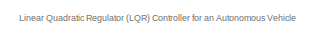
[diagram: root canvas - part 1/5, top left region]
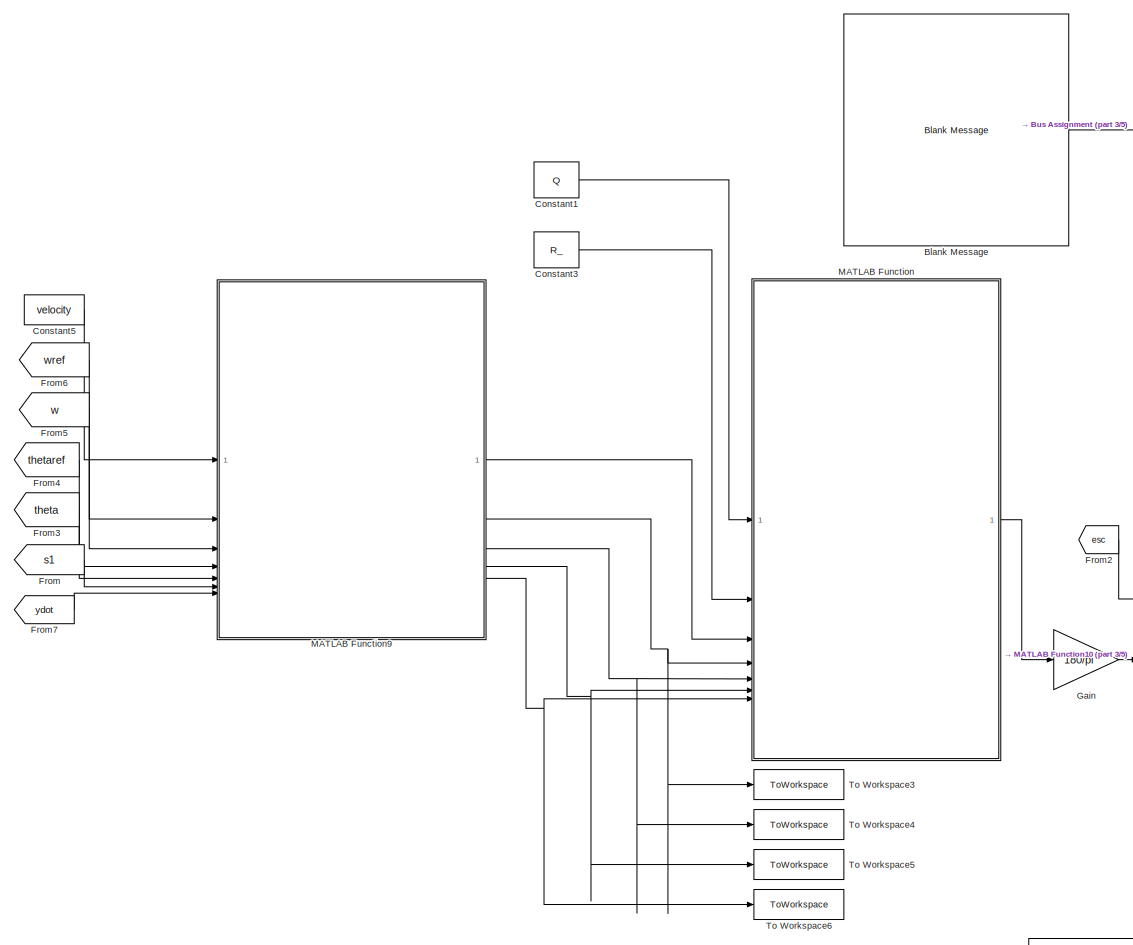
[diagram: root canvas - part 2/5, middle left region]
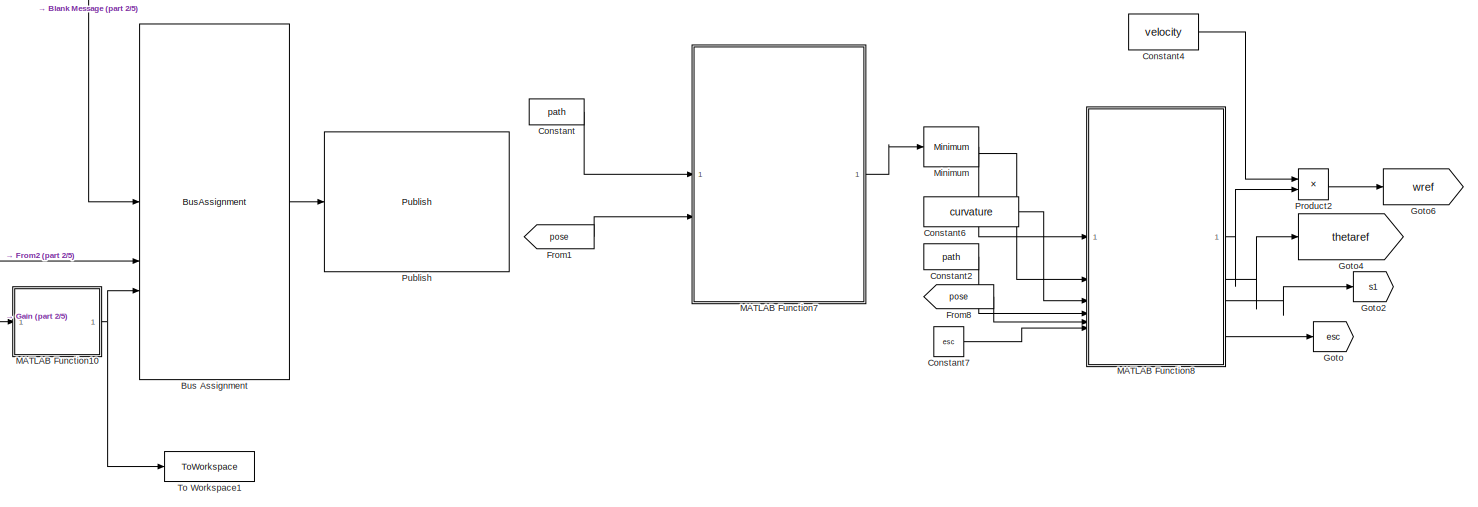
[diagram: root canvas - part 3/5, middle right region]
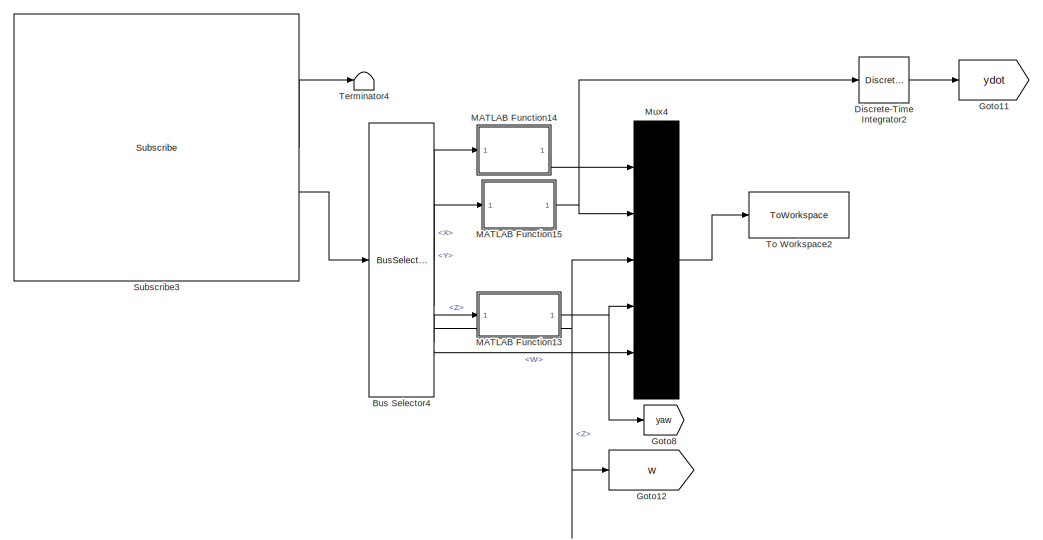
[diagram: root canvas - part 4/5, bottom center region]
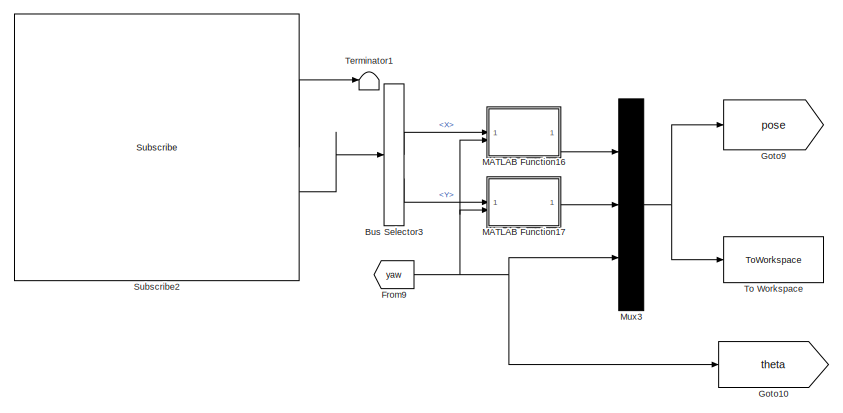
[diagram: root canvas - part 5/5, bottom left region]
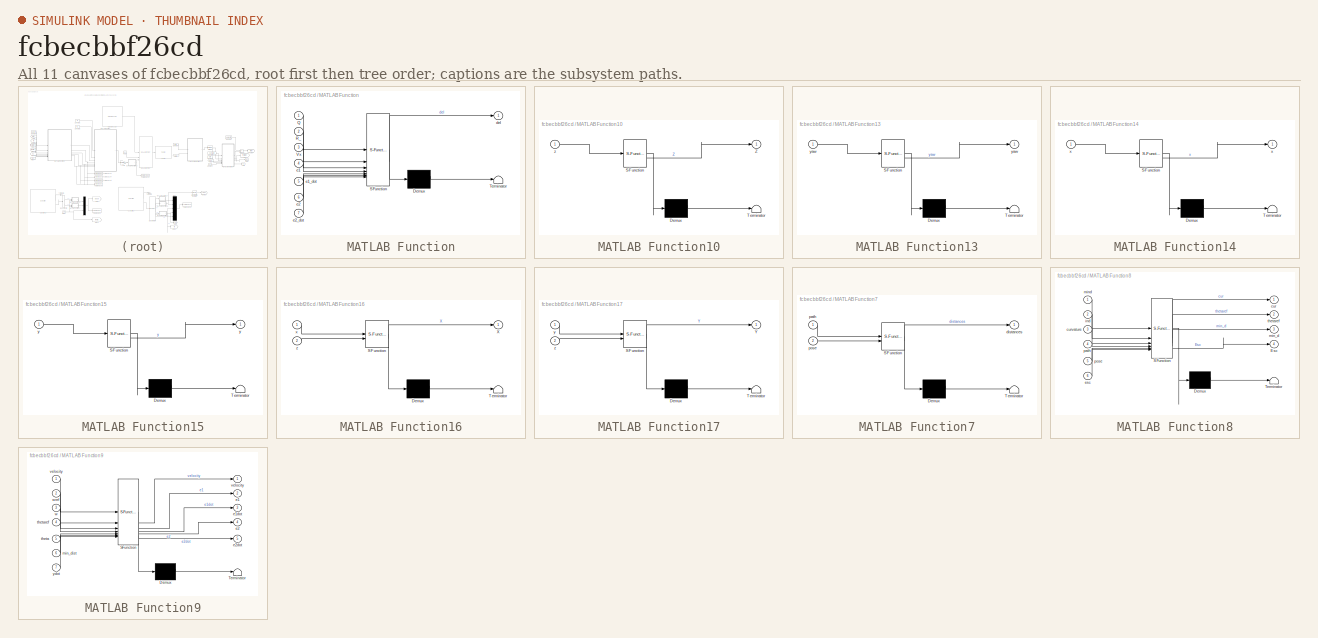
[diagram: thumbnail index - all 11 canvases of the model, root first then tree order]
MODEL slx_fcbecbbf26cd
KIND model
CONFIG AbsTol = auto
CONFIG EnableMultiTasking = off
CONFIG FixedStep = auto
CONFIG MaxStep = auto
CONFIG MinStep = auto
CONFIG RelTol = 1e-3
CONFIG SampleTimeConstraint = Unconstrained
CONFIG SolverName = ode45
CONFIG StartTime = 0.0
CONFIG StopTime = inf
BLOCK [Reference] Blank Message  REF=robotlib/Blank Message
  LibrarySourceBlock = roslib/ROS/Blank Message
  SourceBlock = robotlib/Blank Message
  SourceType = ROS Blank Message
BLOCK [BusAssignment] Bus Assignment
  AssignedSignals = Linear.X,Angular.Z
BLOCK [BusSelector] Bus Selector3
  OutputSignals = Pose.Position.X,Pose.Position.Y
BLOCK [BusSelector] Bus Selector4
  OutputSignals = LinearAcceleration.X,LinearAcceleration.Y,AngularVelocity.Z,Orientation.Z,Orientation.W
BLOCK [Constant] Constant
  SampleTime = 1/hz
  Value = path
BLOCK [Constant] Constant1
  SampleTime = 1/hz
  Value = Q
BLOCK [Constant] Constant2
  SampleTime = 1/hz
  Value = path
BLOCK [Constant] Constant3
  SampleTime = 1/hz
  Value = R_
BLOCK [Constant] Constant4
  SampleTime = 1/hz
  Value = velocity
BLOCK [Constant] Constant5
  SampleTime = 1/hz
  Value = velocity
BLOCK [Constant] Constant6
  SampleTime = 1/hz
  Value = curvature
BLOCK [Constant] Constant7
  SampleTime = 1/hz
  Value = esc
BLOCK [DiscreteIntegrator] Discrete-Time Integrator2
  ICPrevOutput = DiscIntNeverNeededParam
  ICPrevScaledInput = DiscIntNeverNeededParam
  InitialConditionSetting = Auto
  SampleTime = 1/hz
BLOCK [From] From
  GotoTag = s1
BLOCK [From] From1
  GotoTag = pose
BLOCK [From] From2
  GotoTag = esc
BLOCK [From] From3
  GotoTag = theta
BLOCK [From] From4
  GotoTag = thetaref
BLOCK [From] From5
  GotoTag = w
BLOCK [From] From6
  GotoTag = wref
BLOCK [From] From7
  GotoTag = ydot
BLOCK [From] From8
  GotoTag = pose
BLOCK [From] From9
  GotoTag = yaw
BLOCK [Gain] Gain
  Gain = 180/pi
BLOCK [Goto] Goto
  GotoTag = esc
BLOCK [Goto] Goto10
  GotoTag = theta
BLOCK [Goto] Goto11
  GotoTag = ydot
BLOCK [Goto] Goto12
  GotoTag = w
BLOCK [Goto] Goto2
  GotoTag = s1
BLOCK [Goto] Goto4
  GotoTag = thetaref
BLOCK [Goto] Goto6
  GotoTag = wref
BLOCK [Goto] Goto8
  GotoTag = yaw
BLOCK [Goto] Goto9
  GotoTag = pose
BLOCK [SubSystem] MATLAB Function
  ErrorFcn = Stateflow.Translate.translate
  NameLocation = top
  PermitHierarchicalResolution = ExplicitOnly
  SFBlockType = MATLAB Function
  TreatAsAtomicUnit = on
BLOCK [Demux] MATLAB Function/ Demux 
  Outputs = 1
BLOCK [S-Function] MATLAB Function/ SFunction 
  EnableBusSupport = on
  FunctionName = sf_sfun
  PortCounts = [7 2]
  SFcnIsStateOwnerBlock = off
  SFunctionDeploymentMode = off
  Tag = Stateflow S-Function 2
BLOCK [Terminator] MATLAB Function/ Terminator 
BLOCK [Inport] MATLAB Function/Q
BLOCK [Inport] MATLAB Function/R_
  Port = 2
BLOCK [Inport] MATLAB Function/Vx
  Port = 3
BLOCK [Outport] MATLAB Function/del
BLOCK [Inport] MATLAB Function/e1
  Port = 4
BLOCK [Inport] MATLAB Function/e1_dot
  Port = 5
BLOCK [Inport] MATLAB Function/e2
  Port = 6
BLOCK [Inport] MATLAB Function/e2_dot
  Port = 7
BLOCK [SubSystem] MATLAB Function10
  ErrorFcn = Stateflow.Translate.translate
  LibrarySourceBlock = simulink/User-Defined\nFunctions/MATLAB Function
  PermitHierarchicalResolution = ExplicitOnly
  SFBlockType = MATLAB Function
  TreatAsAtomicUnit = on
BLOCK [Demux] MATLAB Function10/ Demux 
  Outputs = 1
BLOCK [S-Function] MATLAB Function10/ SFunction 
  EnableBusSupport = on
  FunctionName = sf_sfun
  PortCounts = [1 2]
  SFcnIsStateOwnerBlock = off
  SFunctionDeploymentMode = off
  Tag = Stateflow S-Function 11
BLOCK [Terminator] MATLAB Function10/ Terminator 
BLOCK [Outport] MATLAB Function10/Z
BLOCK [Inport] MATLAB Function10/z
BLOCK [SubSystem] MATLAB Function13
  ErrorFcn = Stateflow.Translate.translate
  LibrarySourceBlock = simulink/User-Defined\nFunctions/MATLAB Function
  PermitHierarchicalResolution = ExplicitOnly
  SFBlockType = MATLAB Function
  TreatAsAtomicUnit = on
BLOCK [Demux] MATLAB Function13/ Demux 
  Outputs = 1
BLOCK [S-Function] MATLAB Function13/ SFunction 
  EnableBusSupport = on
  FunctionName = sf_sfun
  PortCounts = [1 2]
  SFcnIsStateOwnerBlock = off
  SFunctionDeploymentMode = off
  Tag = Stateflow S-Function 14
BLOCK [Terminator] MATLAB Function13/ Terminator 
BLOCK [Outport] MATLAB Function13/yaw
BLOCK [Inport] MATLAB Function13/yaw 
BLOCK [SubSystem] MATLAB Function14
  ErrorFcn = Stateflow.Translate.translate
  LibrarySourceBlock = simulink/User-Defined\nFunctions/MATLAB Function
  PermitHierarchicalResolution = ExplicitOnly
  SFBlockType = MATLAB Function
  TreatAsAtomicUnit = on
BLOCK [Demux] MATLAB Function14/ Demux 
  Outputs = 1
BLOCK [S-Function] MATLAB Function14/ SFunction 
  EnableBusSupport = on
  FunctionName = sf_sfun
  PortCounts = [1 2]
  SFcnIsStateOwnerBlock = off
  SFunctionDeploymentMode = off
  Tag = Stateflow S-Function 15
BLOCK [Terminator] MATLAB Function14/ Terminator 
BLOCK [Outport] MATLAB Function14/x
BLOCK [Inport] MATLAB Function14/x 
BLOCK [SubSystem] MATLAB Function15
  ErrorFcn = Stateflow.Translate.translate
  LibrarySourceBlock = simulink/User-Defined\nFunctions/MATLAB Function
  PermitHierarchicalResolution = ExplicitOnly
  SFBlockType = MATLAB Function
  TreatAsAtomicUnit = on
BLOCK [Demux] MATLAB Function15/ Demux 
  Outputs = 1
BLOCK [S-Function] MATLAB Function15/ SFunction 
  EnableBusSupport = on
  FunctionName = sf_sfun
  PortCounts = [1 2]
  SFcnIsStateOwnerBlock = off
  SFunctionDeploymentMode = off
  Tag = Stateflow S-Function 16
BLOCK [Terminator] MATLAB Function15/ Terminator 
BLOCK [Outport] MATLAB Function15/y
BLOCK [Inport] MATLAB Function15/y 
BLOCK [SubSystem] MATLAB Function16
  ErrorFcn = Stateflow.Translate.translate
  LibrarySourceBlock = simulink/User-Defined\nFunctions/MATLAB Function
  PermitHierarchicalResolution = ExplicitOnly
  SFBlockType = MATLAB Function
  TreatAsAtomicUnit = on
BLOCK [Demux] MATLAB Function16/ Demux 
  Outputs = 1
BLOCK [S-Function] MATLAB Function16/ SFunction 
  EnableBusSupport = on
  FunctionName = sf_sfun
  PortCounts = [2 2]
  SFcnIsStateOwnerBlock = off
  SFunctionDeploymentMode = off
  Tag = Stateflow S-Function 17
BLOCK [Terminator] MATLAB Function16/ Terminator 
BLOCK [Outport] MATLAB Function16/X
BLOCK [Inport] MATLAB Function16/x
BLOCK [Inport] MATLAB Function16/z
  Port = 2
BLOCK [SubSystem] MATLAB Function17
  ErrorFcn = Stateflow.Translate.translate
  LibrarySourceBlock = simulink/User-Defined\nFunctions/MATLAB Function
  PermitHierarchicalResolution = ExplicitOnly
  SFBlockType = MATLAB Function
  TreatAsAtomicUnit = on
BLOCK [Demux] MATLAB Function17/ Demux 
  Outputs = 1
BLOCK [S-Function] MATLAB Function17/ SFunction 
  EnableBusSupport = on
  FunctionName = sf_sfun
  PortCounts = [2 2]
  SFcnIsStateOwnerBlock = off
  SFunctionDeploymentMode = off
  Tag = Stateflow S-Function 18
BLOCK [Terminator] MATLAB Function17/ Terminator 
BLOCK [Outport] MATLAB Function17/Y
BLOCK [Inport] MATLAB Function17/y
BLOCK [Inport] MATLAB Function17/z
  Port = 2
BLOCK [SubSystem] MATLAB Function7
  ErrorFcn = Stateflow.Translate.translate
  LibrarySourceBlock = simulink/User-Defined\nFunctions/MATLAB Function
  PermitHierarchicalResolution = ExplicitOnly
  SFBlockType = MATLAB Function
  TreatAsAtomicUnit = on
BLOCK [Demux] MATLAB Function7/ Demux 
  Outputs = 1
BLOCK [S-Function] MATLAB Function7/ SFunction 
  EnableBusSupport = on
  FunctionName = sf_sfun
  PortCounts = [2 2]
  SFcnIsStateOwnerBlock = off
  SFunctionDeploymentMode = off
  Tag = Stateflow S-Function 8
BLOCK [Terminator] MATLAB Function7/ Terminator 
BLOCK [Outport] MATLAB Function7/distances
BLOCK [Inport] MATLAB Function7/path
BLOCK [Inport] MATLAB Function7/pose
  Port = 2
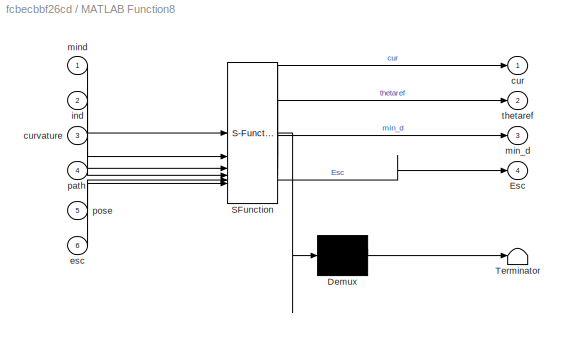
BLOCK [SubSystem] MATLAB Function8
  ErrorFcn = Stateflow.Translate.translate
  LibrarySourceBlock = simulink/User-Defined\nFunctions/MATLAB Function
  PermitHierarchicalResolution = ExplicitOnly
  SFBlockType = MATLAB Function
  TreatAsAtomicUnit = on
BLOCK [Demux] MATLAB Function8/ Demux 
  Outputs = 1
BLOCK [S-Function] MATLAB Function8/ SFunction 
  EnableBusSupport = on
  FunctionName = sf_sfun
  PortCounts = [6 5]
  SFcnIsStateOwnerBlock = off
  SFunctionDeploymentMode = off
  Tag = Stateflow S-Function 9
BLOCK [Terminator] MATLAB Function8/ Terminator 
BLOCK [Outport] MATLAB Function8/Esc
  Port = 4
BLOCK [Outport] MATLAB Function8/cur
BLOCK [Inport] MATLAB Function8/curvature
  Port = 3
BLOCK [Inport] MATLAB Function8/esc
  Port = 6
BLOCK [Inport] MATLAB Function8/ind
  Port = 2
BLOCK [Outport] MATLAB Function8/min_d
  Port = 3
BLOCK [Inport] MATLAB Function8/mind
BLOCK [Inport] MATLAB Function8/path
  Port = 4
BLOCK [Inport] MATLAB Function8/pose
  Port = 5
BLOCK [Outport] MATLAB Function8/thetaref
  Port = 2
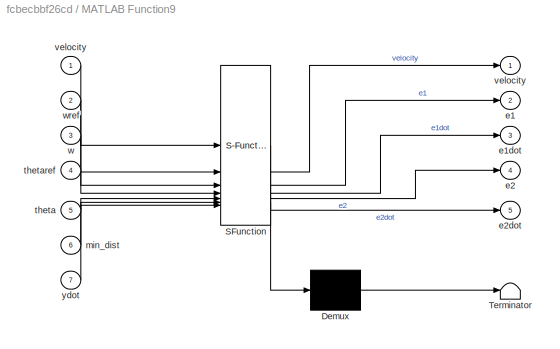
BLOCK [SubSystem] MATLAB Function9
  ErrorFcn = Stateflow.Translate.translate
  LibrarySourceBlock = simulink/User-Defined\nFunctions/MATLAB Function
  PermitHierarchicalResolution = ExplicitOnly
  SFBlockType = MATLAB Function
  TreatAsAtomicUnit = on
BLOCK [Demux] MATLAB Function9/ Demux 
  Outputs = 1
BLOCK [S-Function] MATLAB Function9/ SFunction 
  EnableBusSupport = on
  FunctionName = sf_sfun
  PortCounts = [7 6]
  SFcnIsStateOwnerBlock = off
  SFunctionDeploymentMode = off
  Tag = Stateflow S-Function 10
BLOCK [Terminator] MATLAB Function9/ Terminator 
BLOCK [Outport] MATLAB Function9/e1
  Port = 2
BLOCK [Outport] MATLAB Function9/e1dot
  Port = 3
BLOCK [Outport] MATLAB Function9/e2
  Port = 4
BLOCK [Outport] MATLAB Function9/e2dot
  Port = 5
BLOCK [Inport] MATLAB Function9/min_dist
  Port = 6
BLOCK [Inport] MATLAB Function9/theta
  Port = 5
BLOCK [Inport] MATLAB Function9/thetaref
  Port = 4
BLOCK [Outport] MATLAB Function9/velocity
BLOCK [Inport] MATLAB Function9/velocity 
BLOCK [Inport] MATLAB Function9/w
  Port = 3
BLOCK [Inport] MATLAB Function9/wref
  Port = 2
BLOCK [Inport] MATLAB Function9/ydot
  Port = 7
BLOCK [Reference] Minimum  REF=dspstat3/Minimum
  SourceBlock = dspstat3/Minimum
  SourceType = Minimum
  UserDataPersistent = on
BLOCK [Mux] Mux3
  DisplayOption = bar
  Inputs = 3
BLOCK [Mux] Mux4
  DisplayOption = bar
  Inputs = 5
BLOCK [Product] Product2
BLOCK [Reference] Publish  REF=robotlib/Publish
  LibrarySourceBlock = roslib/ROS/Publish
  SourceBlock = robotlib/Publish
  SourceType = ROS Publish
BLOCK [Reference] Subscribe2  REF=robotlib/Subscribe
  LibrarySourceBlock = roslib/ROS/Subscribe
  SourceBlock = robotlib/Subscribe
  SourceType = ROS Subscribe
BLOCK [Reference] Subscribe3  REF=robotlib/Subscribe
  LibrarySourceBlock = roslib/ROS/Subscribe
  SourceBlock = robotlib/Subscribe
  SourceType = ROS Subscribe
BLOCK [Terminator] Terminator1
BLOCK [Terminator] Terminator4
BLOCK [ToWorkspace] To Workspace
  FixptAsFi = on
  MaxDataPoints = inf
  SampleTime = -1
  SaveFormat = Structure With Time
  VariableName = pose
BLOCK [ToWorkspace] To Workspace1
  FixptAsFi = on
  MaxDataPoints = inf
  SampleTime = -1
  SaveFormat = Structure With Time
  VariableName = steering
BLOCK [ToWorkspace] To Workspace2
  FixptAsFi = on
  MaxDataPoints = inf
  SampleTime = -1
  SaveFormat = Structure With Time
  VariableName = IMU
BLOCK [ToWorkspace] To Workspace3
  FixptAsFi = on
  MaxDataPoints = inf
  SampleTime = -1
  SaveFormat = Structure With Time
  VariableName = e1
BLOCK [ToWorkspace] To Workspace4
  FixptAsFi = on
  MaxDataPoints = inf
  SampleTime = -1
  SaveFormat = Structure With Time
  VariableName = e1_dot
BLOCK [ToWorkspace] To Workspace5
  FixptAsFi = on
  MaxDataPoints = inf
  SampleTime = -1
  SaveFormat = Structure With Time
  VariableName = e2
BLOCK [ToWorkspace] To Workspace6
  FixptAsFi = on
  MaxDataPoints = inf
  SampleTime = -1
  SaveFormat = Structure With Time
  VariableName = e2_dot
ANNOTATION (root): Linear Quadratic Regulator (LQR) Controller for an Autonomous Vehicle
LINE Blank Message:1 -> Bus Assignment:1
LINE Bus Assignment:1 -> Publish:1
LINE Bus Selector3:1 -> MATLAB Function16:1
LINE Bus Selector3:2 -> MATLAB Function17:1
LINE Bus Selector4:1 -> MATLAB Function14:1
LINE Bus Selector4:2 -> MATLAB Function15:1
NET Bus Selector4:3 -> Goto12:1, Mux4:3
LINE Bus Selector4:4 -> MATLAB Function13:1
LINE Bus Selector4:5 -> Mux4:5
LINE Constant1:1 -> MATLAB Function:1
LINE Constant2:1 -> MATLAB Function8:4
LINE Constant3:1 -> MATLAB Function:2
LINE Constant4:1 -> Product2:1
LINE Constant5:1 -> MATLAB Function9:1
LINE Constant6:1 -> MATLAB Function8:3
LINE Constant7:1 -> MATLAB Function8:6
LINE Constant:1 -> MATLAB Function7:1
LINE Discrete-Time Integrator2:1 -> Goto11:1
LINE From1:1 -> MATLAB Function7:2
LINE From2:1 -> Bus Assignment:2
LINE From3:1 -> MATLAB Function9:5
LINE From4:1 -> MATLAB Function9:4
LINE From5:1 -> MATLAB Function9:3
LINE From6:1 -> MATLAB Function9:2
LINE From7:1 -> MATLAB Function9:7
LINE From8:1 -> MATLAB Function8:5
NET From9:1 -> Goto10:1, MATLAB Function16:2, MATLAB Function17:2, Mux3:3
LINE From:1 -> MATLAB Function9:6
LINE Gain:1 -> MATLAB Function10:1
NET MATLAB Function10:1 -> Bus Assignment:3, To Workspace1:1
NET MATLAB Function13:1 -> Goto8:1, Mux4:4
LINE MATLAB Function14:1 -> Mux4:1
NET MATLAB Function15:1 -> Discrete-Time Integrator2:1, Mux4:2
LINE MATLAB Function16:1 -> Mux3:1
LINE MATLAB Function17:1 -> Mux3:2
LINE MATLAB Function7:1 -> Minimum:1
LINE MATLAB Function8:1 -> Product2:2
LINE MATLAB Function8:2 -> Goto4:1
LINE MATLAB Function8:3 -> Goto2:1
LINE MATLAB Function8:4 -> Goto:1
LINE MATLAB Function9:1 -> MATLAB Function:3
NET MATLAB Function9:2 -> MATLAB Function:4, To Workspace3:1
NET MATLAB Function9:3 -> MATLAB Function:5, To Workspace4:1
NET MATLAB Function9:4 -> MATLAB Function:6, To Workspace5:1
NET MATLAB Function9:5 -> MATLAB Function:7, To Workspace6:1
LINE MATLAB Function:1 -> Gain:1
LINE Minimum:1 -> MATLAB Function8:1
LINE Minimum:2 -> MATLAB Function8:2
NET Mux3:1 -> Goto9:1, To Workspace:1
LINE Mux4:1 -> To Workspace2:1
LINE Product2:1 -> Goto6:1
LINE Subscribe2:1 -> Terminator1:1
LINE Subscribe2:2 -> Bus Selector3:1
LINE Subscribe3:1 -> Terminator4:1
LINE Subscribe3:2 -> Bus Selector4:1
note: NET lines group one-source signal fan-out (src -> all destinations, sorted); 1:1 wires keep LINE
CHART MATLAB Function17 states=1 transitions=1
  STATE_LABEL 'eML_blk_kernel()'
  STATE_LABEL 'SCRIPT:\nfunction Y = fcn(y,z)\nY = y + 0.330*sin(z)/2;\nend'
CHART MATLAB Function states=1 transitions=1
  STATE_LABEL 'eML_blk_kernel()'
  STATE_LABEL 'SCRIPT:\nfunction del = steering_angle(Q,R_,Vx,e1,e1_dot, e2, e2_dot)\n\n% defining vehicle parameters\na = 0.330/2;     % m ,distance from CoG to front axel\nb = 0.330/2;     % m ,distance from CoG to rear axel\nIz = 5*0.1^2;  % kg-m^2 ,Yaw rate of inertia around CoG\nm = 5;     % kg ,mass of the vehicle \nCf = 8354;   % N/rad ,cornering stiffness of the front axel\nCr = 8310;   % N/rad ,cornering stiffne...<+646ch>'
CHART MATLAB Function7 states=1 transitions=1
  STATE_LABEL 'eML_blk_kernel()'
  STATE_LABEL 'SCRIPT:\nfunction distances  = nearestPose(path, pose)\n    % path: Nx3 matrix containing the x, y, and heading of the waypoints in the path\n    % current_pose: 1x3 vector containing the x, y, and heading of the current pose of the vehicle\n    % nearest_pose: 1x3 vector containing the x, y, and heading of the nearest pose on the path\n    % nearest_index: index of the nearest pose on the path\n    \n  ...<+356ch>'
CHART MATLAB Function8 states=1 transitions=1
  STATE_LABEL 'eML_blk_kernel()'
  STATE_LABEL 'SCRIPT:\nfunction [cur,thetaref,min_d,Esc] = fcn(mind,ind,curvature,path,pose,esc)\n\ncur = curvature(ind);\nthetaref = path(ind,3);\n\n% cross track error\n\ncurrent_position = [pose(1);pose(2)];\nnext_waypoint = [path(ind+1,1);path(ind+1,2)];\n\nwaypoint_vector = next_waypoint - current_position;\nnormal_vector = [-waypoint_vector(2), waypoint_vector(1)];\nvehicle_heading = [cos(pose(3)), sin(pose(3))];\ndot_...<+380ch>'
CHART MATLAB Function9 states=1 transitions=1
  STATE_LABEL 'eML_blk_kernel()'
  STATE_LABEL 'SCRIPT:\nfunction [velocity,e1,e1dot,e2,e2dot]= state(velocity,wref,w,thetaref,theta,min_dist,ydot)\n\n% rate change of heading error\n e2dot = w - wref;\n\n% heading error \n e2    = theta -thetaref;\nif e2 <= -pi\n    e2 = theta + (2*pi-thetaref);\nelseif e2 >= pi\n    e2 = -(2*pi-theta+thetaref);\nend\na = e2*180/pi\n% cross track error\n e1 = min_dist;\n e1dot = ydot+velocity*(e2);\nend'
CHART MATLAB Function10 states=1 transitions=1
  STATE_LABEL 'eML_blk_kernel()'
  STATE_LABEL 'SCRIPT:\nfunction Z = fcn(z)\n\nif (z > 30)\n    z = 30;\nelseif (z < -30)\n    z = -30;\nelse\n    z =z;\nend\n\nZ = z;\nend\n'
CHART MATLAB Function13 states=1 transitions=1
  STATE_LABEL 'eML_blk_kernel()'
  STATE_LABEL 'SCRIPT:\nfunction yaw = fcn(yaw)\nyaw = 360-yaw;\n\nyaw = yaw*pi/180;\nend'
CHART MATLAB Function14 states=1 transitions=1
  STATE_LABEL 'eML_blk_kernel()'
  STATE_LABEL 'SCRIPT:\nfunction x = fcn(x)\nx = x - (0);\nend\n'
CHART MATLAB Function15 states=1 transitions=1
  STATE_LABEL 'eML_blk_kernel()'
  STATE_LABEL 'SCRIPT:\nfunction y = fcn(y)\ny = y - (0);\nend\n'
CHART MATLAB Function16 states=1 transitions=1
  STATE_LABEL 'eML_blk_kernel()'
  STATE_LABEL 'SCRIPT:\nfunction X = fcn(x,z)\n\nX = x + 0.330*cos(z)/2;\n\nend\n'
CHART  states=0 transitions=0
CHART  states=0 transitions=0
CHART  states=0 transitions=0
CHART  states=0 transitions=0
CHART  states=0 transitions=0
CHART  states=0 transitions=0
CHART  states=0 transitions=0
CHART  states=0 transitions=0
CHART  states=0 transitions=0
CHART  states=0 transitions=0
